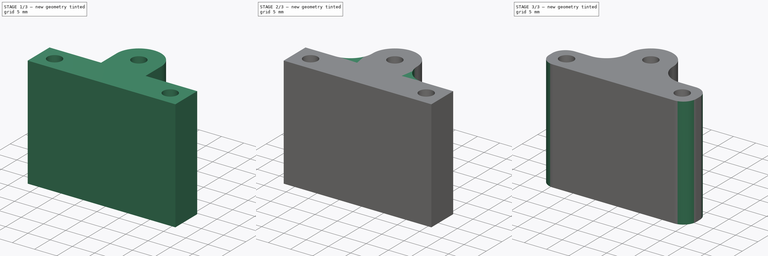
[diagram: build sequence overview — one tinted view per stage of 3, left to right]
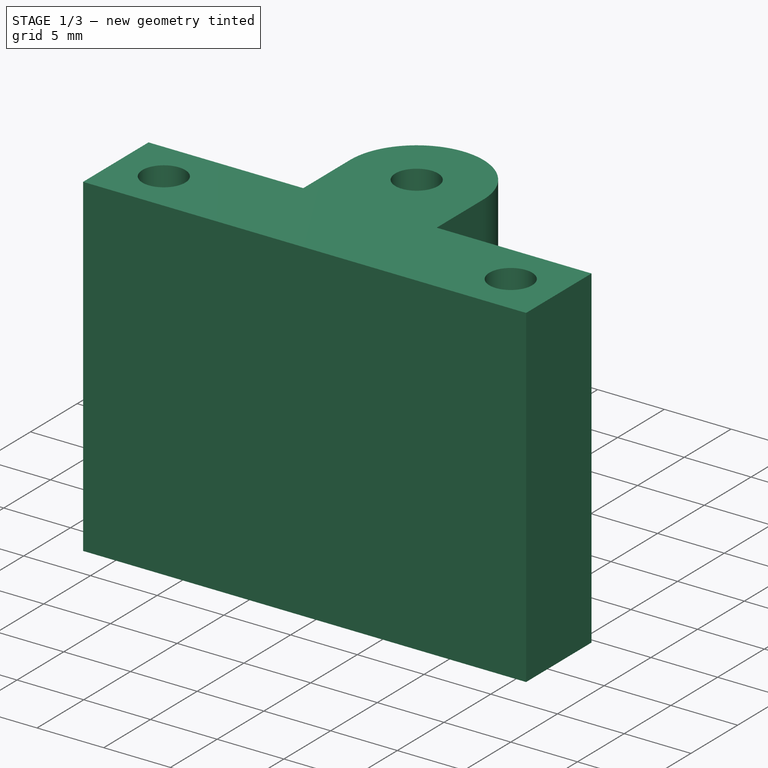
[diagram: stage 1 of 3 — iso view after this stage's code; geometry added in this stage tinted green]
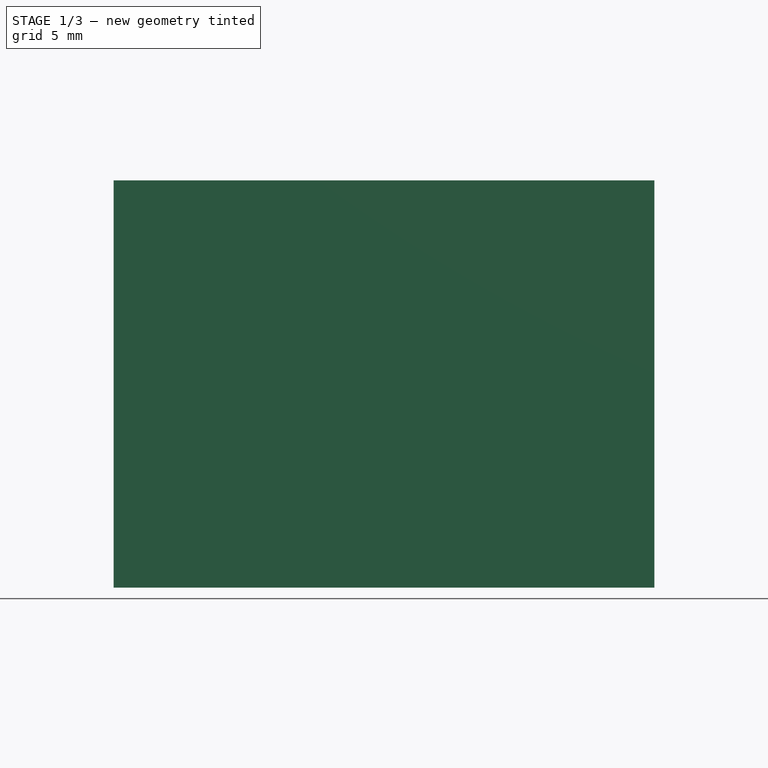
[diagram: stage 1 of 3 — front view after this stage's code; geometry added in this stage tinted green]
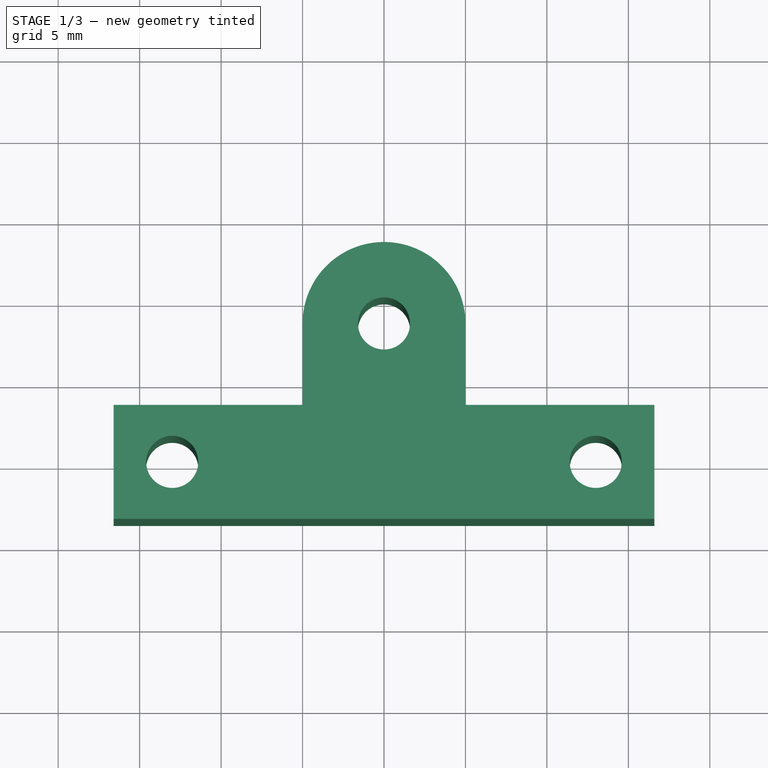
[diagram: stage 1 of 3 — top view after this stage's code; geometry added in this stage tinted green]
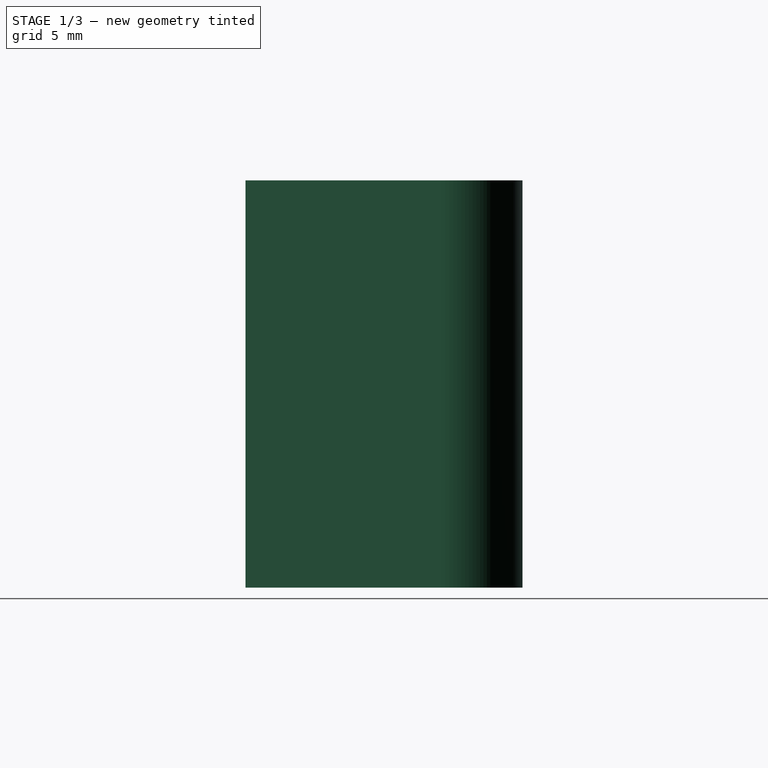
[diagram: stage 1 of 3 — right view after this stage's code; geometry added in this stage tinted green]
FCSTD DOCUMENT  (FreeCAD 0.20R29603 (Git))
Label: malcal-suporte-amortecedor
License: All rights reserved
LicenseURL: http://en.wikipedia.org/wiki/All_rights_reserved
objects: Sketcher::SketchObject×4, PartDesign::Pad×2, PartDesign::Fillet×2, PartDesign::Pocket×2, PartDesign::Body×1
note: 17 computed .brp shape members not serialized (recipe doc carries the construction recipe); baked Part::Feature solids carry a one-line shape summary decoded from their .brp

FEATURE [Sketcher::SketchObject] Sketch
  FullyConstrained = true
  MapMode = 5
  Support = -> [XY_Plane]
  sketch-geometry (12):
    g0: LineSegment StartX=-16.6 StartY=3.5 StartZ=0 EndX=16.6 EndY=3.5 EndZ=0
    g1: LineSegment StartX=16.6 StartY=3.5 StartZ=0 EndX=16.6 EndY=-3.5 EndZ=0
    g2: LineSegment StartX=16.6 StartY=-3.5 StartZ=0 EndX=-16.6 EndY=-3.5 EndZ=0
    g3: LineSegment StartX=-16.6 StartY=-3.5 StartZ=0 EndX=-16.6 EndY=3.5 EndZ=0
    g4: LineSegment StartX=-16.6 StartY=3.5 StartZ=0 EndX=16.6 EndY=-3.5 EndZ=0
    g5: LineSegment StartX=16.6 StartY=3.5 StartZ=0 EndX=-16.6 EndY=-3.5 EndZ=0
    g6: Circle CenterX=-13 CenterY=0 CenterZ=0 NormalX=0 NormalY=0 NormalZ=1 AngleXU=0 Radius=1.6
    g7: Circle CenterX=13 CenterY=0 CenterZ=0 NormalX=0 NormalY=0 NormalZ=1 AngleXU=0 Radius=1.6
    g8: LineSegment StartX=-13 StartY=0 StartZ=0 EndX=0 EndY=0 EndZ=0
    g9: LineSegment StartX=0 StartY=0 StartZ=0 EndX=13 EndY=0 EndZ=0
    g10: GeomPoint X=-14.6 Y=0 Z=0
    g11: GeomPoint X=-16.6 Y=0 Z=0
  constraints (30):
    c: Coincident(g0,g1)
    c: Coincident(g1,g2)
    c: Coincident(g2,g3)
    c: Coincident(g3,g0)
    c: Horizontal(g0)
    c: Horizontal(g2)
    c: Vertical(g1)
    c: Vertical(g3)
    c: Coincident(g4,g3)
    c: Coincident(g4,g1)
    c: Coincident(g5,g1)
    c: Coincident(g5,g2)
    c: PointOnObject(g-1,g5)
    c: PointOnObject(g-1,g4)
    c: DistanceY(g3,g3) = 7
    c: PointOnObject(g6,g-1)
    c: PointOnObject(g7,g-1)
    c: Coincident(g8,g6)
    c: Coincident(g9,g8)
    c: Coincident(g9,g7)
    c: Equal(g9,g8)
    c: Coincident(g8,g-1)
    c: Equal(g6,g7)
    c: Radius(g7) = 1.6
    c: PointOnObject(g11,g3)
    c: PointOnObject(g11,g-1)
    c: PointOnObject(g10,g6)
    c: DistanceX(g11,g10) = 2
    c: DistanceX(g6,g7) = 26
    c: PointOnObject(g10,g-1)
FEATURE [PartDesign::Pad] Pad
  Direction = (0,0,1)
  Length = 25
  Length2 = 10
  Profile = -> Sketch
  ReferenceAxis = -> Sketch [N_Axis]
  Type = 0
FEATURE [Sketcher::SketchObject] Sketch001
  ExternalGeometry = -> [Pad]
  FullyConstrained = true
  MapMode = 5
  Placement = pos=(0,0,25) rot=(0,0,1;0rad)
  Support = -> [Pad]
  sketch-geometry (7):
    g0: LineSegment StartX=0 StartY=0 StartZ=0 EndX=0 EndY=8.5 EndZ=0
    g1: Circle CenterX=0 CenterY=8.5 CenterZ=0 NormalX=0 NormalY=0 NormalZ=1 AngleXU=0 Radius=5
    g2: ArcOfCircle CenterX=0 CenterY=8.5 CenterZ=0 NormalX=0 NormalY=0 NormalZ=1 AngleXU=0 Radius=5 StartAngle=0 EndAngle=3.14159
    g3: LineSegment StartX=-5 StartY=8.5 StartZ=0 EndX=-5 EndY=3.5 EndZ=0
    g4: LineSegment StartX=5 StartY=3.5 StartZ=0 EndX=5 EndY=8.5 EndZ=0
    g5: Circle CenterX=0 CenterY=8.5 CenterZ=0 NormalX=0 NormalY=0 NormalZ=1 AngleXU=0 Radius=1.6
    g6: LineSegment StartX=-5 StartY=3.5 StartZ=0 EndX=5 EndY=3.5 EndZ=0
  constraints (17):
    c: Coincident(g0,g-1)
    c: PointOnObject(g0,g-2)
    c: Coincident(g1,g0)
    c: Radius(g1) = 5
    c: Tangent(g1,g-3)
    c: Tangent(g2,g3) = -1.5708
    c: Tangent(g4,g2) = -1.5708
    c: Coincident(g2,g0)
    c: Equal(g2,g1)
    c: Vertical(g3)
    c: Vertical(g4)
    c: PointOnObject(g4,g-3)
    c: PointOnObject(g3,g-3)
    c: Coincident(g5,g2)
    c: Radius(g5) = 1.6
    c: Coincident(g6,g3)
    c: Coincident(g6,g4)
FEATURE [PartDesign::Pad] Pad001
  BaseFeature = -> Pad
  Direction = (0,0,1)
  Length = 10
  Length2 = 10
  Profile = -> Sketch001
  ReferenceAxis = -> Sketch001 [N_Axis]
  Reversed = true
  Type = 3
  UpToFace = -> Pad [Face7]
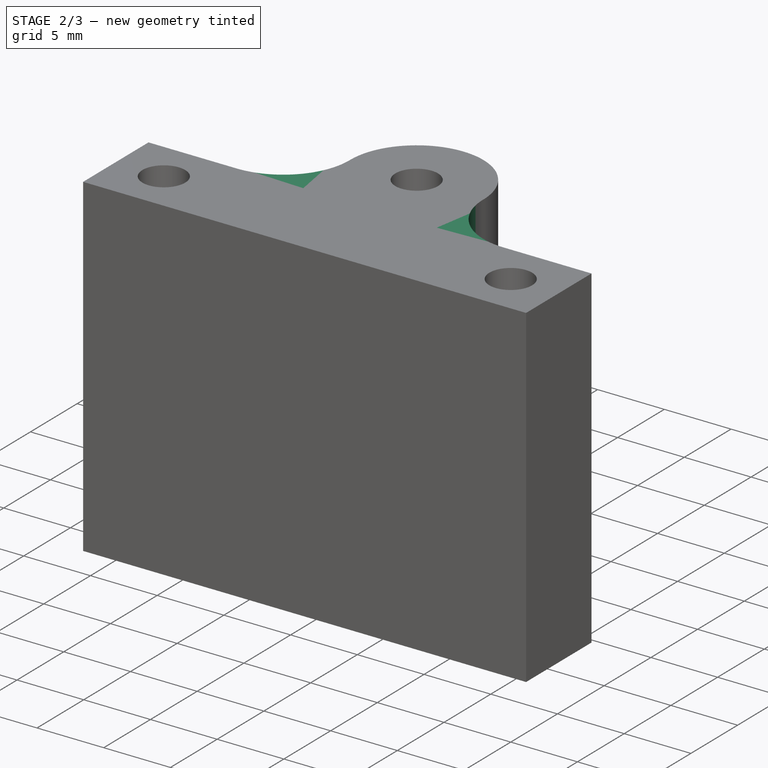
[diagram: stage 2 of 3 — iso view after this stage's code; geometry added in this stage tinted green]
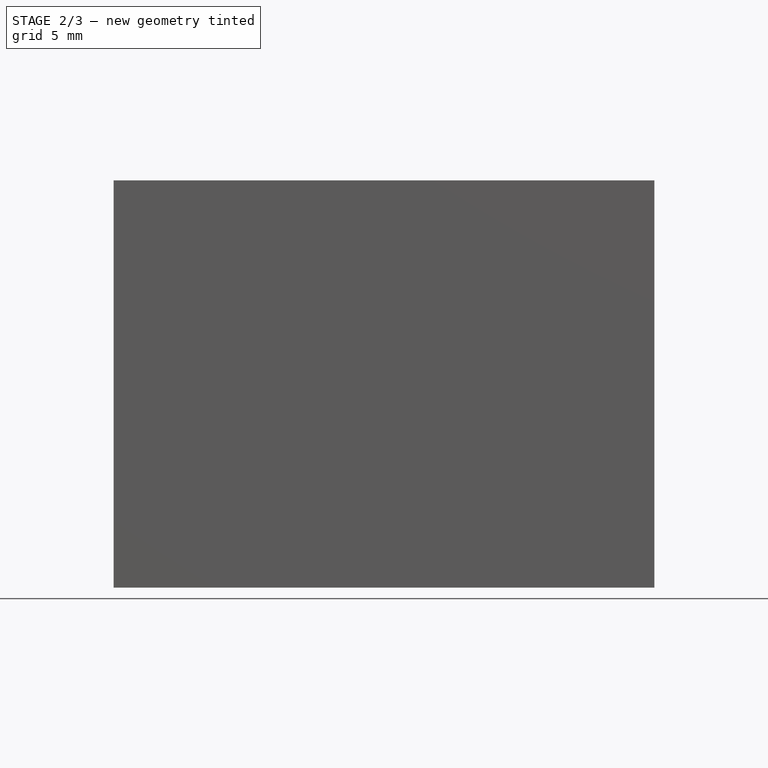
[diagram: stage 2 of 3 — front view after this stage's code; geometry added in this stage tinted green]
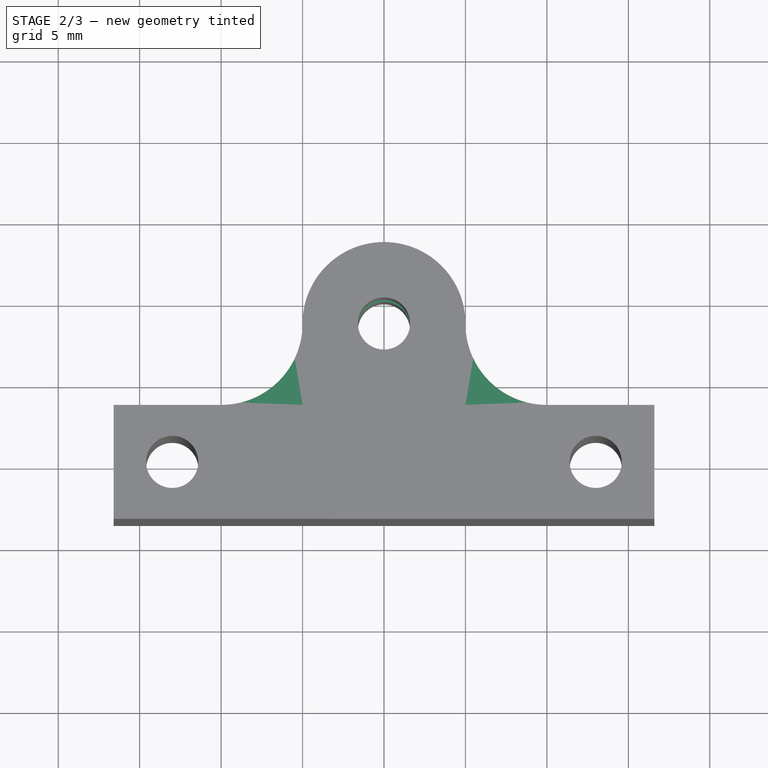
[diagram: stage 2 of 3 — top view after this stage's code; geometry added in this stage tinted green]
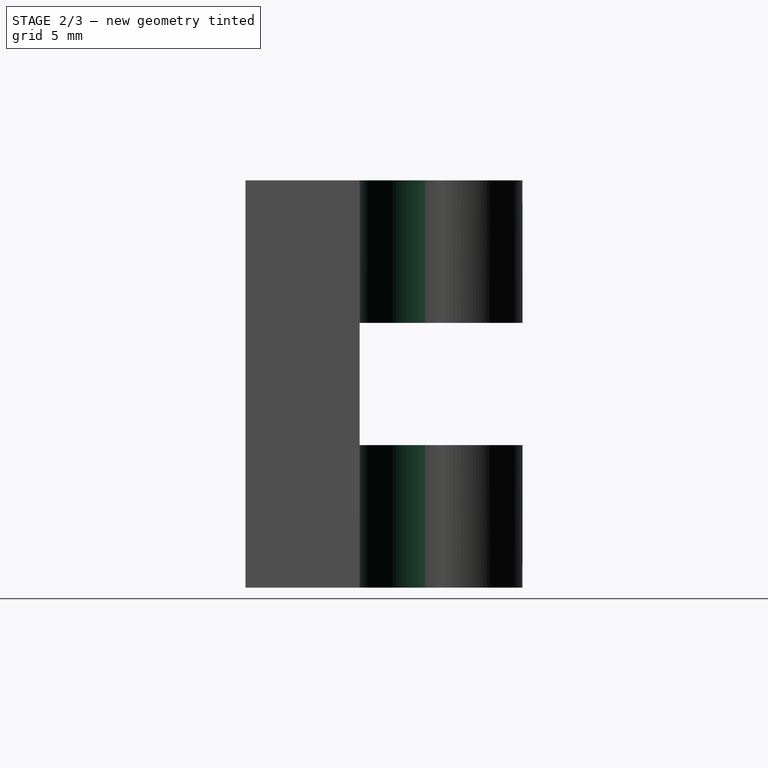
[diagram: stage 2 of 3 — right view after this stage's code; geometry added in this stage tinted green]
FEATURE [PartDesign::Fillet] Fillet
  Base = -> Pad001 [Edge2,Edge27]
  BaseFeature = -> Pad001
  Radius = 4.99
  SupportTransform = false
  UseAllEdges = false
FEATURE [Sketcher::SketchObject] Sketch002
  ExternalGeometry = -> [Fillet]
  FullyConstrained = true
  MapMode = 5
  Placement = pos=(-16.6,0,0) rot=(0.57735,-0.57735,-0.57735;2.0944rad)
  Support = -> [Fillet]
  sketch-geometry (6):
    g0: LineSegment StartX=-13.5 StartY=16.25 StartZ=0 EndX=-3.5 EndY=16.25 EndZ=0
    g1: LineSegment StartX=-3.5 StartY=16.25 StartZ=0 EndX=-3.5 EndY=8.75 EndZ=0
    g2: LineSegment StartX=-3.5 StartY=8.75 StartZ=0 EndX=-13.5 EndY=8.75 EndZ=0
    g3: LineSegment StartX=-13.5 StartY=8.75 StartZ=0 EndX=-13.5 EndY=16.25 EndZ=0
    g4: LineSegment StartX=-3.5 StartY=25 StartZ=0 EndX=-3.5 EndY=16.25 EndZ=0
    g5: LineSegment StartX=-3.5 StartY=0 StartZ=0 EndX=-3.5 EndY=8.75 EndZ=0
  constraints (16):
    c: Coincident(g0,g1)
    c: Coincident(g1,g2)
    c: Coincident(g2,g3)
    c: Coincident(g3,g0)
    c: Horizontal(g0)
    c: Horizontal(g2)
    c: Vertical(g1)
    c: Vertical(g3)
    c: PointOnObject(g0,g-3)
    c: Vertical(g0,g-4)
    c: Coincident(g4,g-3)
    c: Coincident(g5,g-3)
    c: Equal(g5,g4)
    c: Coincident(g5,g1)
    c: Coincident(g4,g0)
    c: DistanceY(g3,g3) = 7.5
FEATURE [PartDesign::Pocket] Pocket
  BaseFeature = -> Fillet
  Direction = (1,0,0)
  Length = 5
  Length2 = 5
  Profile = -> Sketch002
  ReferenceAxis = -> Sketch002 [N_Axis]
  Type = 1
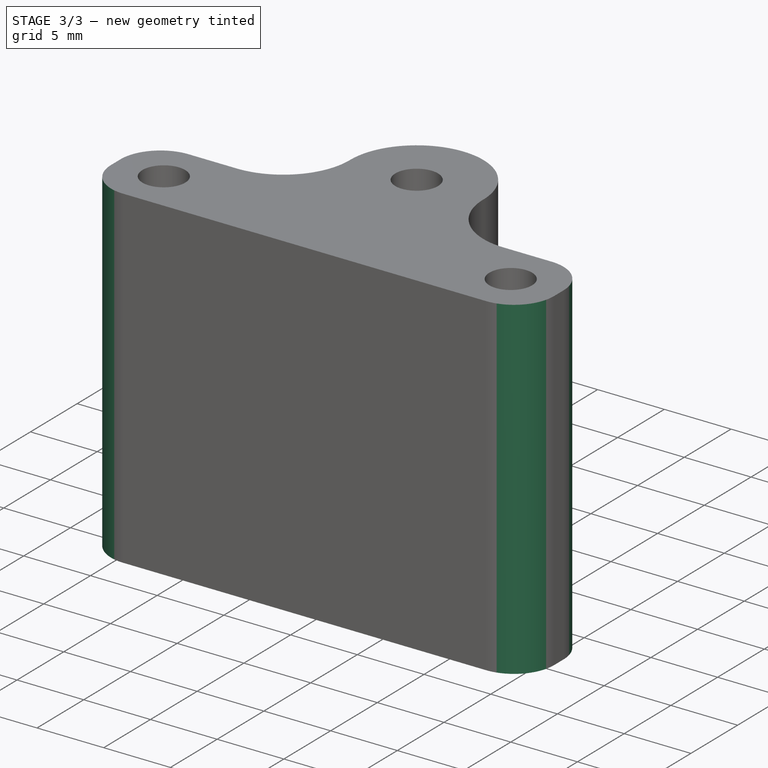
[diagram: stage 3 of 3 — iso view after this stage's code; geometry added in this stage tinted green]
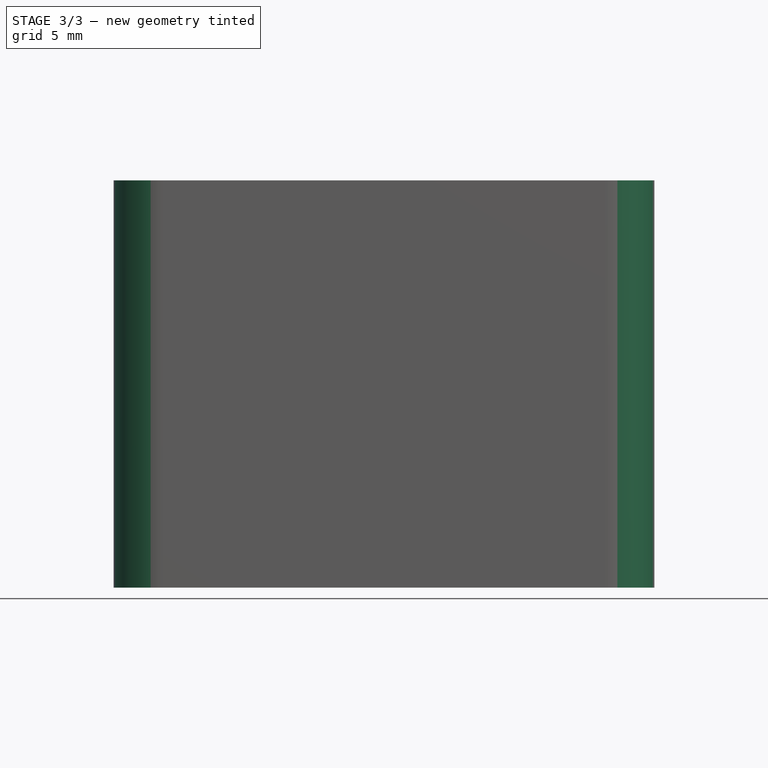
[diagram: stage 3 of 3 — front view after this stage's code; geometry added in this stage tinted green]
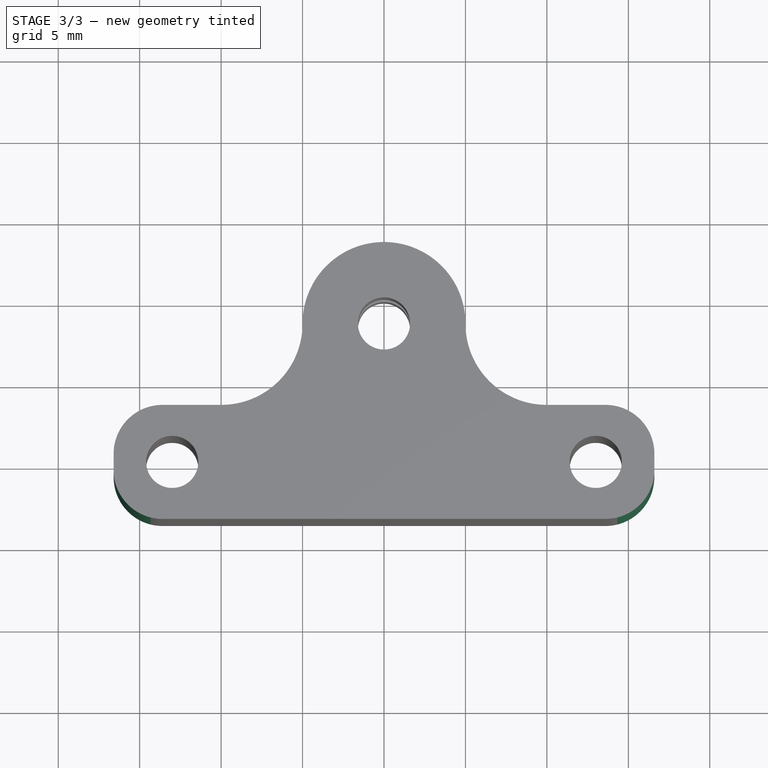
[diagram: stage 3 of 3 — top view after this stage's code; geometry added in this stage tinted green]
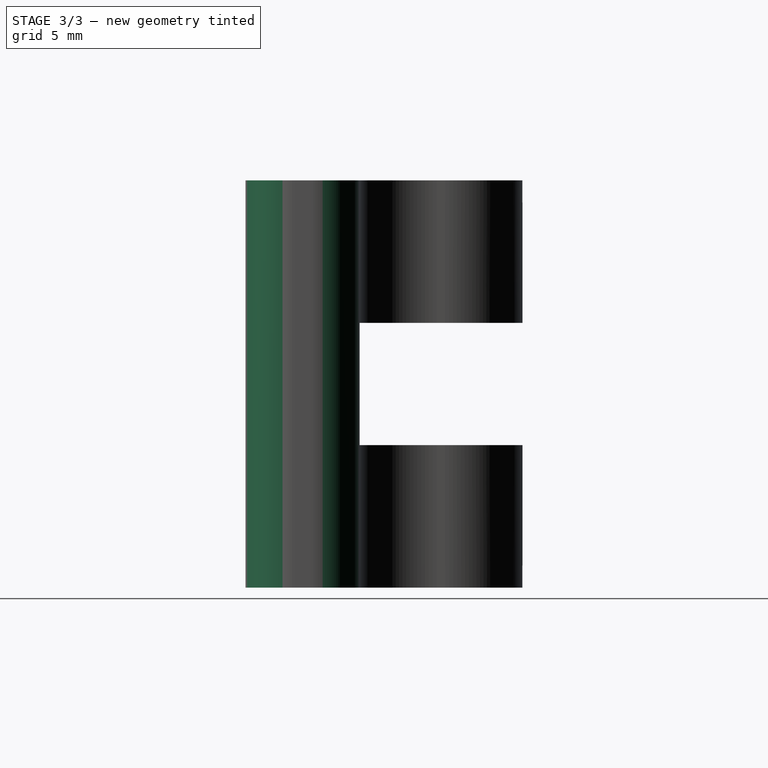
[diagram: stage 3 of 3 — right view after this stage's code; geometry added in this stage tinted green]
FEATURE [Sketcher::SketchObject] Sketch004
  ExternalGeometry = -> [Pocket]
  FullyConstrained = true
  MapMode = 5
  Placement = pos=(0,0,0) rot=(1,0,0;3.14159rad)
  Support = -> [Pocket]
  sketch-geometry (7):
    g0: LineSegment StartX=2.8 StartY=-6.88342 StartZ=0 EndX=0 EndY=-5.26684 EndZ=0
    g1: LineSegment StartX=0 StartY=-5.26684 StartZ=0 EndX=-2.8 EndY=-6.88342 EndZ=0
    g2: LineSegment StartX=-2.8 StartY=-6.88342 StartZ=0 EndX=-2.8 EndY=-10.1166 EndZ=0
    g3: LineSegment StartX=-2.8 StartY=-10.1166 StartZ=0 EndX=-4e-16 EndY=-11.7332 EndZ=0
    g4: LineSegment StartX=-4e-16 StartY=-11.7332 StartZ=0 EndX=2.8 EndY=-10.1166 EndZ=0
    g5: LineSegment StartX=2.8 StartY=-10.1166 StartZ=0 EndX=2.8 EndY=-6.88342 EndZ=0
    g6: Circle CenterX=0 CenterY=-8.5 CenterZ=0 NormalX=0 NormalY=0 NormalZ=1 AngleXU=0 Radius=3.23316
  constraints (16):
    c: Coincident(g0,g1)
    c: Coincident(g1,g2)
    c: Coincident(g2,g3)
    c: Coincident(g3,g4)
    c: Coincident(g4,g5)
    c: Coincident(g5,g0)
    c: Equal(g0, g1-g5) x5
    c: PointOnObject(g0,g6)
    c: PointOnObject(g1,g6)
    c: PointOnObject(g2,g6)
    c: PointOnObject(g3,g6)
    c: PointOnObject(g4,g6)
    c: PointOnObject(g5,g6)
    c: Coincident(g6,g-3)
    c: PointOnObject(g0,g-2)
    c: DistanceX(g1,g0) = 5.6
FEATURE [PartDesign::Pocket] Pocket001
  BaseFeature = -> Pocket
  Direction = (0,0,1)
  Length = 2.5
  Length2 = 5
  Profile = -> Sketch004
  ReferenceAxis = -> Sketch004 [N_Axis]
  Type = 0
FEATURE [PartDesign::Fillet] Fillet001
  Base = -> Pocket001 [Edge54,Edge45,Edge12,Edge11]
  BaseFeature = -> Pocket001
  Radius = 3
  SupportTransform = false
  UseAllEdges = false
FEATURE [PartDesign::Body] Body
  Group = -> [Sketch,Pad,Sketch001,Pad001,Fillet,Sketch002,Pocket,Sketch004,Pocket001,Fillet001]
  Origin = -> Origin
  Tip = -> Fillet001
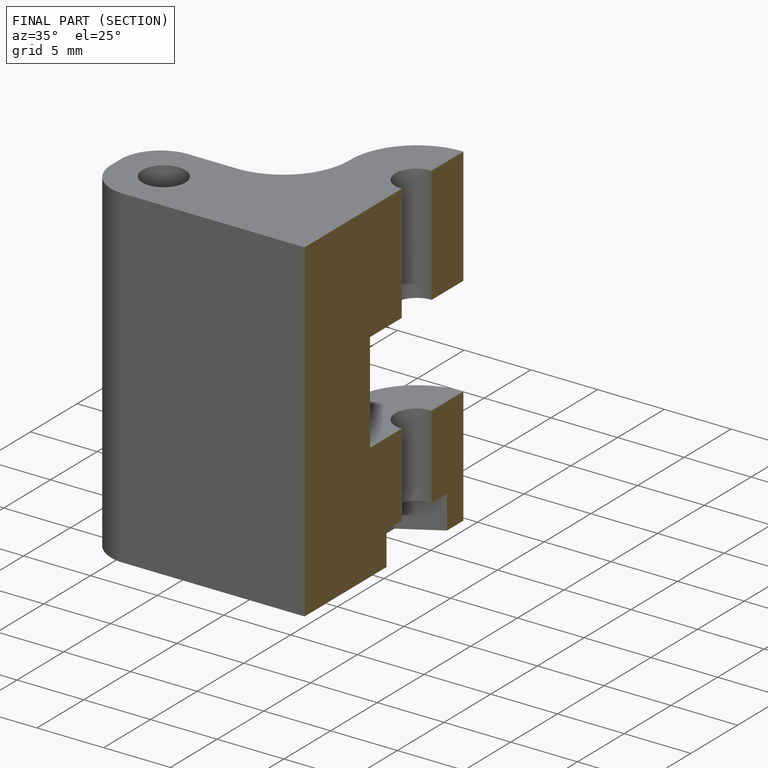
[diagram: finished part — half-section view (interior)]
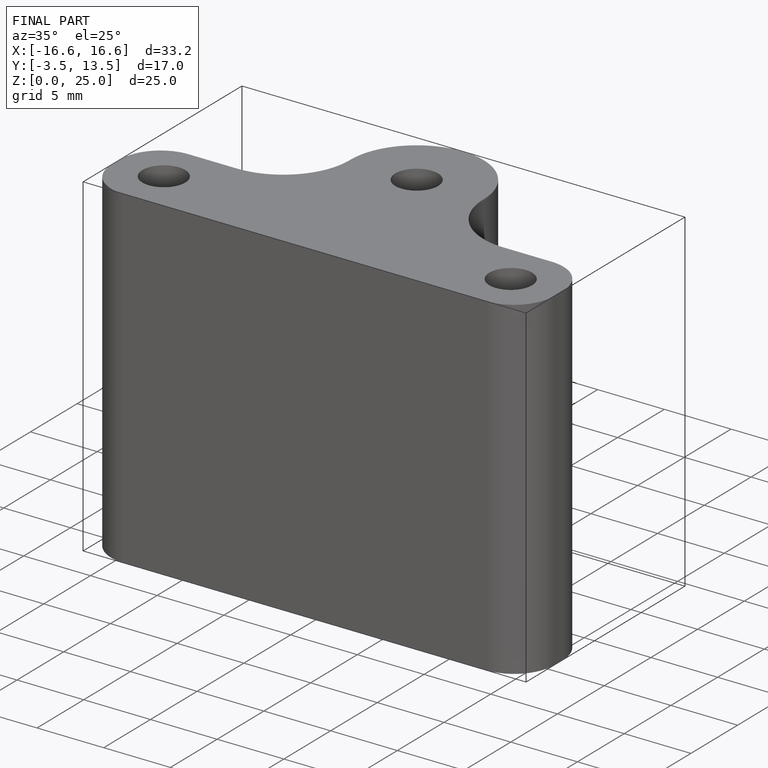
[diagram: finished part — iso view with bounding-box wireframe]
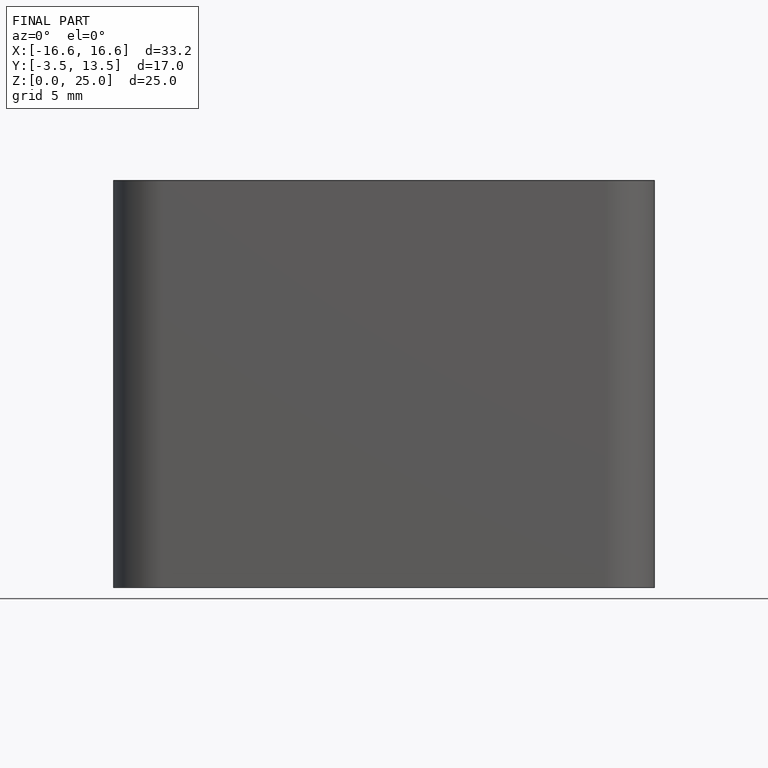
[diagram: finished part — front view with bounding-box wireframe]
